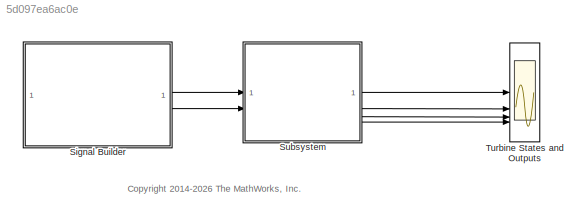
MODEL slx_5d097ea6ac0e
KIND model
CONFIG EnableMultiTasking = on
CONFIG FixedStep = 0.001
CONFIG MaxStep = 1e-4
CONFIG SolverName = ode3
CONFIG StopTime = 20
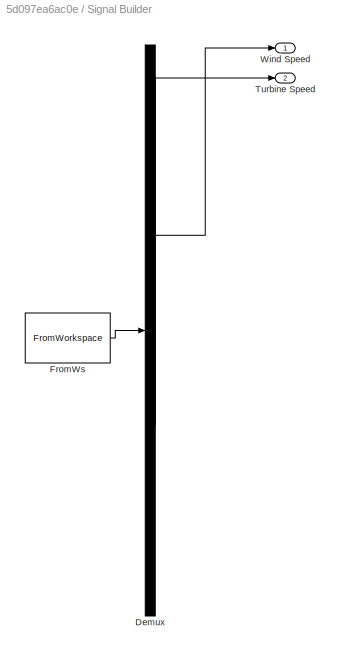
BLOCK [SubSystem] Signal Builder
  ClipboardFcn = sigbuilder_block('clipboard');
  CloseFcn = sigbuilder_block('close');
  ContinueFcn = sigbuilder_block('continue')
  CopyFcn = sigbuilder_block('copy');
  DeleteFcn = sigbuilder_block('delete');
  LoadFcn = sigbuilder_block('load',[316.5 171.75 805.5 485.25 ]);
  MaskHideContents = on
  ModelCloseFcn = sigbuilder_block('modelClose');
  NameChangeFcn = sigbuilder_block('namechange');
  OpenFcn = sigbuilder_block('open',[3 32.25 762 490.5 ]);
  PauseFcn = sigbuilder_block('pause')
  PreSaveFcn = sigbuilder_block('preSave');
  StartFcn = sigbuilder_block('start');
  StopFcn = sigbuilder_block('stop');
  Tag = STV Subsys
BLOCK [Demux] Signal Builder/Demux
  DisplayOption = none
  Outputs = 2
  Tag = STV Demux
BLOCK [FromWorkspace] Signal Builder/FromWs
  Tag = STV FromWs
  VariableName = tuvar
BLOCK [Outport] Signal Builder/Turbine Speed
  Port = 2
  Tag = STV Outport
  VectorParamsAs1DForOutWhenUnconnected = off
BLOCK [Outport] Signal Builder/Wind Speed
  Tag = STV Outport
  VectorParamsAs1DForOutWhenUnconnected = off
BLOCK [ModelReference] Subsystem
  ModelNameDialog = ControlLogic.slx
  ModelReferenceVersion = 12.1
BLOCK [Scope] Turbine States and Outputs
  ActiveDisplayYMaximum = 5
  ActiveDisplayYMinimum = -5
  DataLoggingDecimateData = on
  DataLoggingDecimation = 1
  DataLoggingSaveFormat = Structure With Time
  Floating = off
  GraphicalSettings = {"GraphicalSettings":{"LegacySettings":true,"Style":{"AxesScalingProperties":{"ScaleAxesLimitsAtStop":false},"Style":{"AxesColor":"[0 0 0]","ChannelNames":["","","",""],"ColorOrder":"[1 0.909803921568627 0.392156862745098;0.149019607843137 0.549019607843137 0.866666666666667;0.96078431372549 0.466666666666667 0.16078431372549;0.286274509803922 0.858823529411765 0.250980392156863;0.752941176470588 ...<+581ch>
  LayoutDimensionsString = [4 1]
  MultipleDisplayCache = [{"MaxYLimMag":10,"MaxYLimReal":5,"MinYLimMag":0,"MinYLimReal":-5,"PlotAsMagnitudePhase":false,"ShowGrid":true,"ShowLegend":false,"Title":"%<SignalLabel>","YLabel":""},{"MaxYLimMag":10,"MaxYLimReal":5,"MinYLimMag":0,"MinYLimReal":-5,"PlotAsMagnitudePhase":false,"ShowGrid":true,"ShowLegend":false,"Title":"%<SignalLabel>","YLabel":""},{"MaxYLimMag":10,"MaxYLimReal":5,"MinYLimMag":0,"MinYLimReal":-5,...<+269ch>
  NumInputPorts = 4
  WasSavedAsWebScope = on
  WindowPosition = [1030 206 324 572]
ANNOTATION (root): <copyright redacted>
LINE Signal Builder:1 -> Subsystem:1
LINE Signal Builder:2 -> Subsystem:2
LINE Subsystem:1 -> Turbine States and Outputs:1
LINE Subsystem:2 -> Turbine States and Outputs:2
LINE Subsystem:3 -> Turbine States and Outputs:3
LINE Subsystem:4 -> Turbine States and Outputs:4
